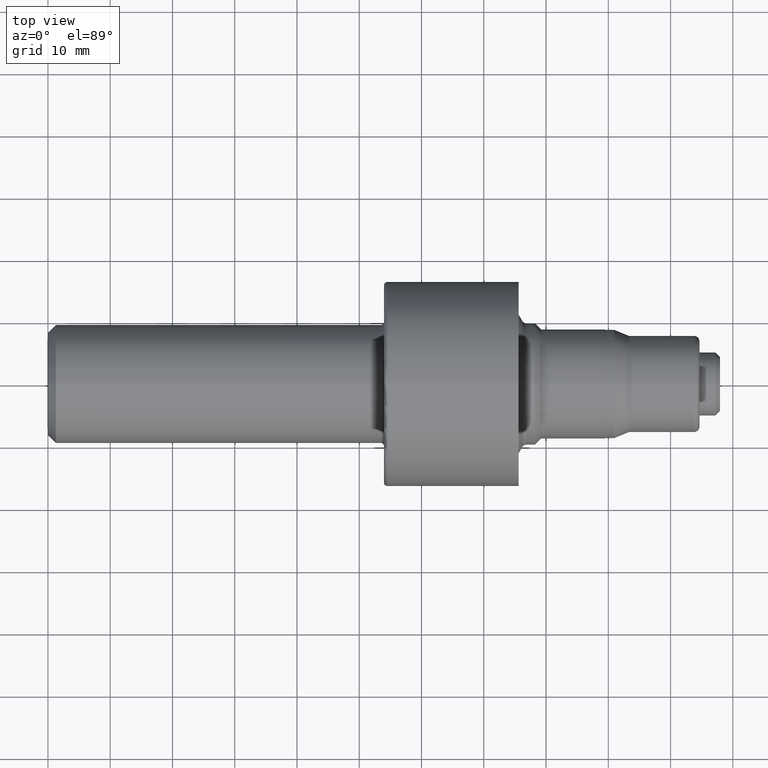
[diagram: clean part render]
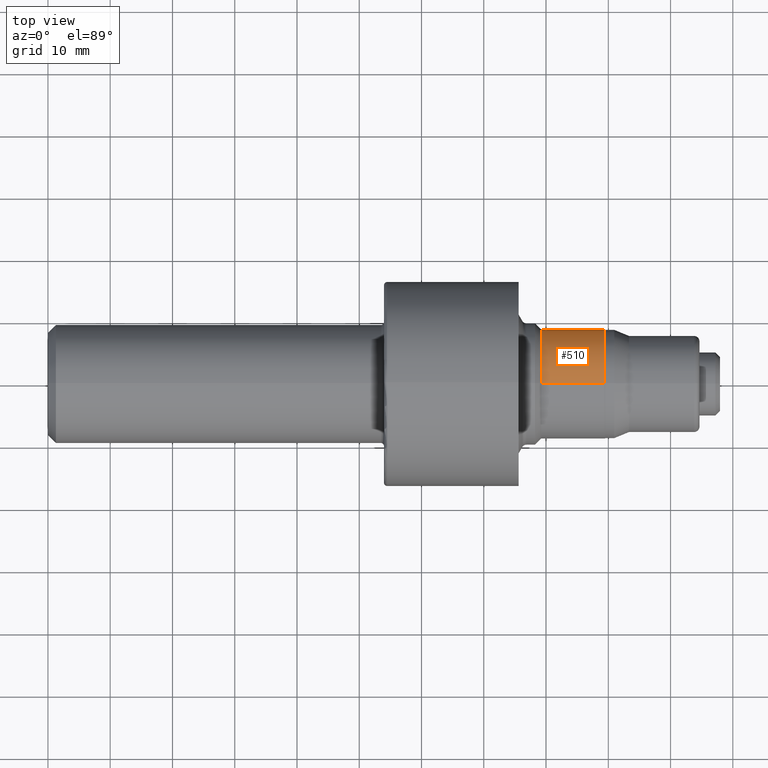
[diagram: same view with one face highlighted and labeled with its STEP entity id]
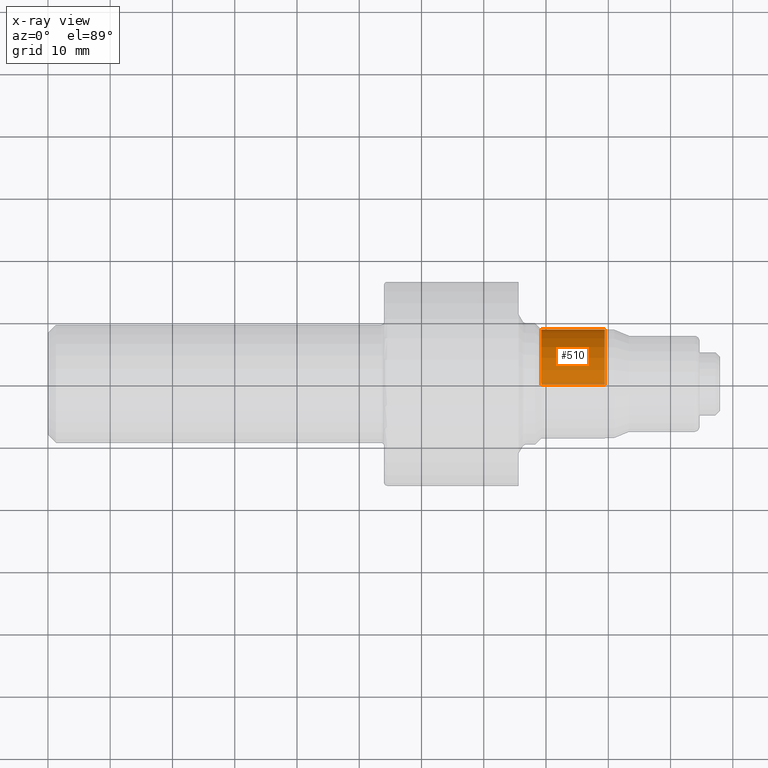
[diagram: x-ray of the same camera — body ghosted, the highlighted face saturated]
A machine part, top view. The second image highlights one B-rep face of the part: STEP entity #510.
The next image is the same camera in x-ray: the body ghosted, the highlighted face saturated — about 4% of this face is hidden behind the body in this view.
In plain terms, the highlighted cylindrical surface (partial cylindrical patch) has radius 8.8011 mm, axis along (-1, -0, -0).
Its self-contained STEP definition (entity closure, byte-faithful):
#14 = CARTESIAN_POINT ( 'NONE',  ( 3.520999999999999908, 0.0000000000000000000, 0.0000000000000000000 ) ) ;
#40 = ORIENTED_EDGE ( 'NONE', *, *, #1007, .F. ) ;
#112 = EDGE_LOOP ( 'NONE', ( #563, #947, #40, #734 ) ) ;
#138 = AXIS2_PLACEMENT_3D ( 'NONE', #155, #296, #517 ) ;
#155 = CARTESIAN_POINT ( 'NONE',  ( 3.119249999999999634, 0.0000000000000000000, 0.0000000000000000000 ) ) ;
#163 = CIRCLE ( 'NONE', #205, 0.3464999999999999747 ) ;
#205 = AXIS2_PLACEMENT_3D ( 'NONE', #14, #1046, #265 ) ;
#251 = VERTEX_POINT ( 'NONE', #518 ) ;
#255 = LINE ( 'NONE', #1077, #711 ) ;
#263 = EDGE_CURVE ( 'NONE', #270, #411, #163, .T. ) ;
#265 = DIRECTION ( 'NONE',  ( 0.0000000000000000000, 0.0000000000000000000, 1.000000000000000000 ) ) ;
#270 = VERTEX_POINT ( 'NONE', #443 ) ;
#274 = LINE ( 'NONE', #387, #941 ) ;
#296 = DIRECTION ( 'NONE',  ( -1.000000000000000000, -0.0000000000000000000, -0.0000000000000000000 ) ) ;
#378 = DIRECTION ( 'NONE',  ( -1.000000000000000000, -0.0000000000000000000, -0.0000000000000000000 ) ) ;
#387 = CARTESIAN_POINT ( 'NONE',  ( 0.0000000000000000000, 0.0000000000000000000, 0.3464999999999999747 ) ) ;
#411 = VERTEX_POINT ( 'NONE', #491 ) ;
#443 = CARTESIAN_POINT ( 'NONE',  ( 3.520999999999999908, 0.0000000000000000000, 0.3464999999999999747 ) ) ;
#491 = CARTESIAN_POINT ( 'NONE',  ( 3.520999999999999908, 4.243401159045578711E-17, -0.3464999999999999747 ) ) ;
#510 = ADVANCED_FACE ( 'NONE', ( #582 ), #999, .T. ) ;
#515 = CIRCLE ( 'NONE', #138, 0.3464999999999999747 ) ;
#517 = DIRECTION ( 'NONE',  ( 0.0000000000000000000, 0.0000000000000000000, 1.000000000000000000 ) ) ;
#518 = CARTESIAN_POINT ( 'NONE',  ( 3.119249999999999634, 4.483738093378246400E-17, -0.3464999999999999747 ) ) ;
#563 = ORIENTED_EDGE ( 'NONE', *, *, #263, .T. ) ;
#576 = DIRECTION ( 'NONE',  ( -1.000000000000000000, -0.0000000000000000000, -0.0000000000000000000 ) ) ;
#582 = FACE_OUTER_BOUND ( 'NONE', #112, .T. ) ;
#649 = EDGE_CURVE ( 'NONE', #270, #808, #274, .T. ) ;
#674 = CARTESIAN_POINT ( 'NONE',  ( 0.0000000000000000000, 0.0000000000000000000, 0.0000000000000000000 ) ) ;
#711 = VECTOR ( 'NONE', #752, 39.37007874015748143 ) ;
#734 = ORIENTED_EDGE ( 'NONE', *, *, #649, .F. ) ;
#752 = DIRECTION ( 'NONE',  ( -1.000000000000000000, -0.0000000000000000000, -0.0000000000000000000 ) ) ;
#755 = DIRECTION ( 'NONE',  ( 0.0000000000000000000, 0.0000000000000000000, 1.000000000000000000 ) ) ;
#799 = AXIS2_PLACEMENT_3D ( 'NONE', #674, #378, #755 ) ;
#808 = VERTEX_POINT ( 'NONE', #967 ) ;
#941 = VECTOR ( 'NONE', #576, 39.37007874015748143 ) ;
#947 = ORIENTED_EDGE ( 'NONE', *, *, #1027, .T. ) ;
#967 = CARTESIAN_POINT ( 'NONE',  ( 3.119249999999999634, 0.0000000000000000000, 0.3464999999999999747 ) ) ;
#999 = CYLINDRICAL_SURFACE ( 'NONE', #799, 0.3464999999999999747 ) ;
#1007 = EDGE_CURVE ( 'NONE', #808, #251, #515, .T. ) ;
#1027 = EDGE_CURVE ( 'NONE', #411, #251, #255, .T. ) ;
#1046 = DIRECTION ( 'NONE',  ( -1.000000000000000000, -0.0000000000000000000, -0.0000000000000000000 ) ) ;
#1077 = CARTESIAN_POINT ( 'NONE',  ( 0.0000000000000000000, 4.243401159045578711E-17, -0.3464999999999999747 ) ) ;